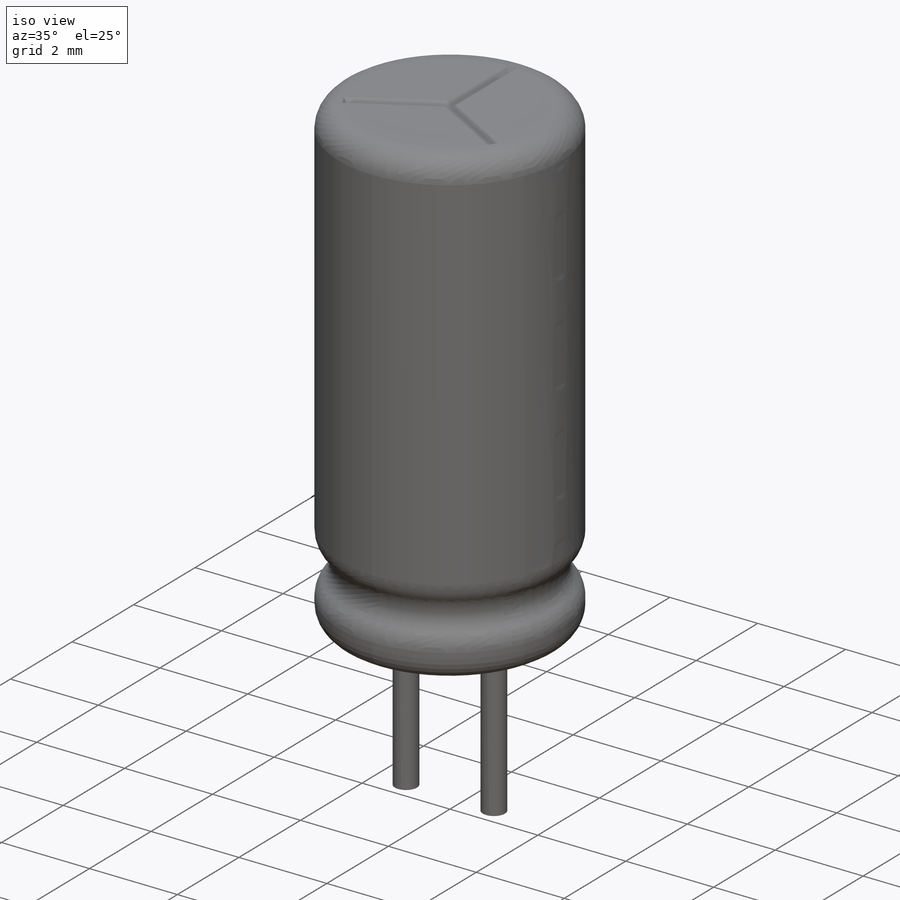
[diagram: iso view]
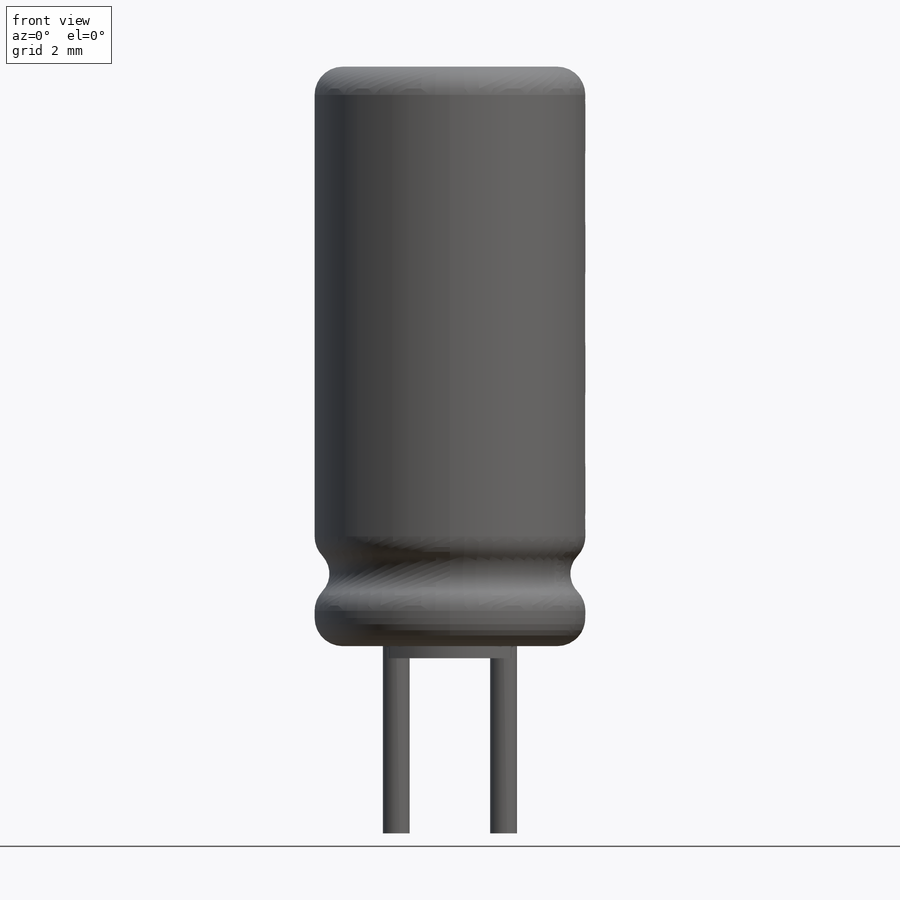
[diagram: front view]
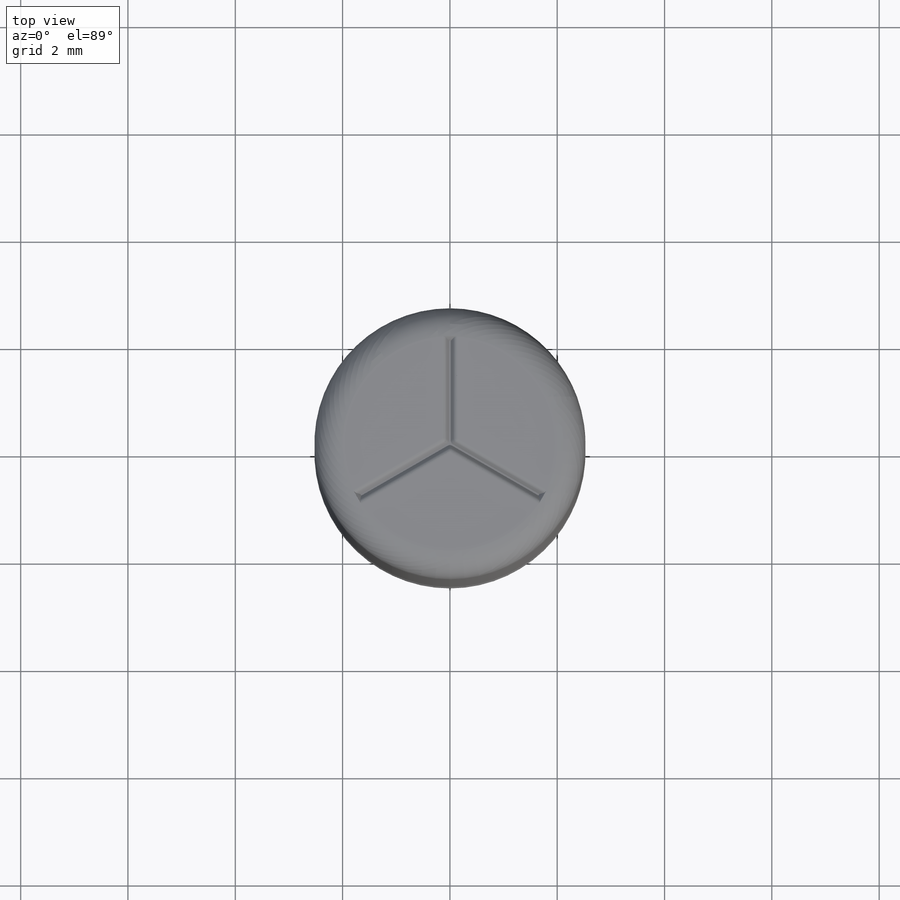
[diagram: top view]
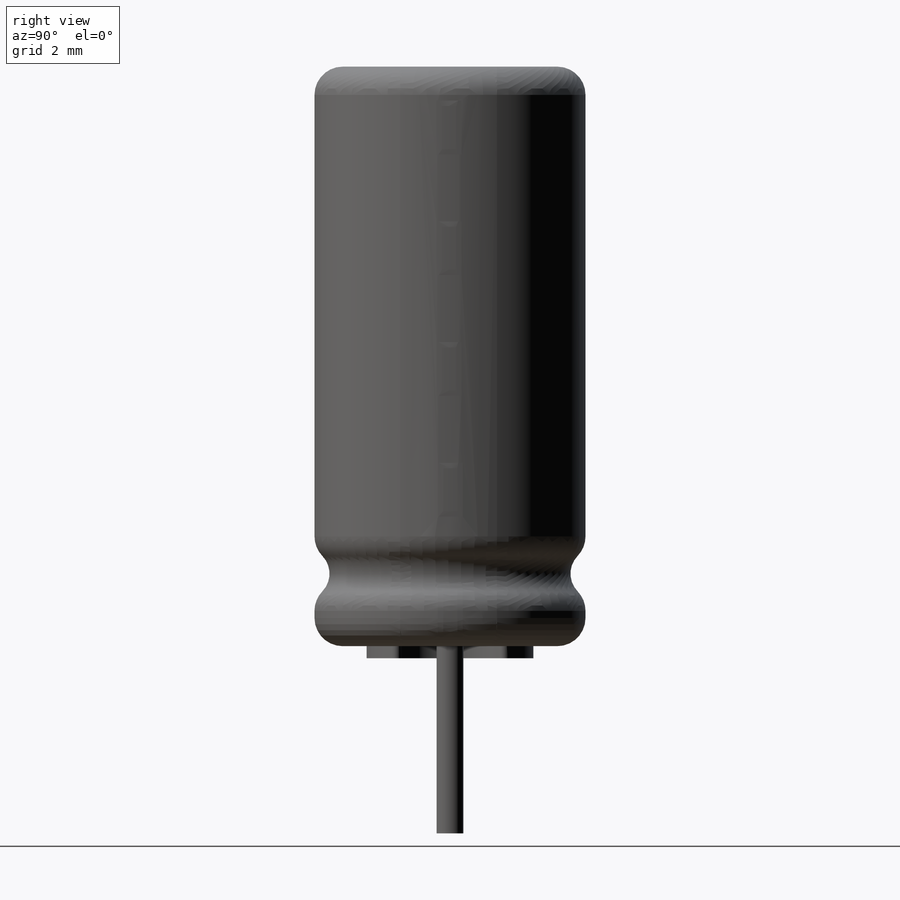
[diagram: right view]
SOLIDWORKS PART (.sldprt)
format: sldprt  version: not decoded by parser v0  size: 1,178,624 bytes
history: native  units: mm
features: sketch x17, pattern_linear x12, plane x3, material x1, revolve x1, mirror x1, extrude x1, sweep x1, cut_extrude x1, fillet x1 (+14 scaffold rows collapsed)
feature tree (53):
  scaffold x14  (default folders/planes/origin — collapsed)
  material  "Material <not specified>"
  plane  "Plan de face"
  plane  "Plan de dessus"
  plane  "Plan de droite"
  sketch  "Esquisse1"  dims[c1.D1=~0.346987mm c1.D2=~0.693974mm c1.D3=~0.346987mm c1.D4=0.5mm c1.D5=12.5mm c1.D6=5.0mm c1.D7=0.5mm c1.D8=5.0mm c1.D9=12.5mm c2.D5=2.5mm c2.D6=10.75mm c2.D8=0.22mm c2.D9=~0.632532mm]
  revolve  "Révolution1"  Angle=360deg
  sketch  "Esquisse3"  dims[c1.D1=30.0mm c2.D1=0.0254mm]
  mirror  "Symétrie1"
  sketch  "Esquisse10"  dims[D1=0.1mm]
  extrude  "Extrusion4"  Depth=0.25mm
  sketch  "Esquisse9"  dims[c1.D1=~0.208061mm c1.D2=0.5mm c2.D1=1.0mm]
  sketch  "Esquisse11"  dims[D1=1.0mm D2=5.0mm]
  sweep  "Balayage1"
  pattern_linear  "Répétition linéaire2"  Count1=2 Count2=1 Spacing1=2mm Spacing2=50mm
  sketch  "Sketch2"  dims[c1.D1=0.5mm c1.D2=11.0mm c1.D3=1.0mm c1.D4=1.0mm c1.D5=1.0mm c1.D6=0.1mm c1.D7=0.1mm c1.D8=0.1mm c1.D9=0.1mm c2.D4=0.1mm c2.D5=0.1mm c2.D10=0.1mm c2.D11=1.25mm c2.D12=1.25mm c2.D13=1.25mm c2.D1=0.1mm]
  pattern_linear  "Split Line2"  [2 undecoded]
  sketch  "Sketch4"  dims[c1.D1=0.5mm c1.D2=11.0mm c1.D3=1.0mm c1.D4=1.0mm c1.D5=1.0mm c1.D6=0.1mm c1.D7=0.1mm c1.D8=0.1mm c1.D9=0.1mm c2.D4=0.1mm c2.D5=0.1mm c2.D10=0.1mm c2.D11=1.25mm c2.D12=1.25mm c2.D13=1.25mm]
  sketch  "Sketch6"  dims[c1.D1=0.5mm c1.D2=11.0mm c1.D3=1.0mm c1.D4=1.0mm c1.D5=1.0mm c1.D6=0.1mm c1.D7=0.1mm c1.D8=0.1mm c1.D9=0.1mm c2.D4=0.1mm c2.D5=0.1mm c2.D10=0.1mm c2.D11=1.25mm c2.D12=1.25mm c2.D13=1.25mm]
  sketch  "Sketch7"  dims[c1.D1=0.5mm c1.D2=11.0mm c1.D3=1.0mm c1.D4=1.0mm c1.D5=1.0mm c1.D6=0.1mm c1.D7=0.1mm c1.D8=0.1mm c1.D9=0.1mm c2.D4=0.1mm c2.D5=0.1mm c2.D10=0.1mm c2.D11=1.25mm c2.D12=1.25mm c2.D13=1.25mm]
  sketch  "Sketch8"  dims[c1.D1=0.5mm c1.D2=11.0mm c1.D3=1.0mm c1.D4=1.0mm c1.D5=1.0mm c1.D6=0.1mm c1.D7=0.1mm c1.D8=0.1mm c1.D9=0.1mm c2.D4=0.1mm c2.D5=0.1mm c2.D10=0.1mm c2.D11=1.25mm c2.D12=1.25mm c2.D13=1.25mm]
  sketch  "Sketch9"  dims[c1.D1=0.5mm c1.D2=11.0mm c1.D3=1.0mm c1.D4=1.0mm c1.D5=1.0mm c1.D6=0.1mm c1.D7=0.1mm c1.D8=0.1mm c1.D9=0.1mm c2.D4=0.1mm c2.D5=0.1mm c2.D10=0.1mm c2.D11=1.25mm c2.D12=1.25mm c2.D13=1.25mm]
  pattern_linear  "Split Line11"  [2 undecoded]
  sketch  "Sketch10"  dims[c1.D1=0.5mm c1.D2=11.0mm c1.D3=1.0mm c1.D4=1.0mm c1.D5=1.0mm c1.D6=0.1mm c1.D7=0.1mm c1.D8=0.1mm c1.D9=0.1mm c2.D4=0.1mm c2.D5=0.1mm c2.D10=0.1mm c2.D11=1.25mm c2.D12=1.25mm c2.D13=1.25mm]
  pattern_linear  "Split Line12"  [2 undecoded]
  sketch  "Sketch11"  dims[c1.D1=0.5mm c1.D2=11.0mm c1.D3=1.0mm c1.D4=1.0mm c1.D5=1.0mm c1.D6=0.1mm c1.D7=0.1mm c1.D8=0.1mm c1.D9=0.1mm c2.D4=0.1mm c2.D5=0.1mm c2.D10=0.1mm c2.D11=1.25mm c2.D12=1.25mm c2.D13=1.25mm]
  pattern_linear  "Split Line16"  [2 undecoded]
  pattern_linear  "Split Line17"  [2 undecoded]
  pattern_linear  "Split Line18"  [2 undecoded]
  pattern_linear  "Split Line19"  [2 undecoded]
  pattern_linear  "Split Line21"  [2 undecoded]
  sketch  "Sketch12"  dims[c1.D1=0.5mm c1.D2=11.0mm c1.D3=1.0mm c1.D4=1.0mm c1.D5=1.0mm c1.D6=0.1mm c1.D7=0.1mm c1.D8=0.1mm c1.D9=0.1mm c2.D4=0.1mm c2.D5=0.1mm c2.D10=0.1mm c2.D11=1.25mm c2.D12=1.25mm c2.D13=1.25mm]
  pattern_linear  "Split Line22"  [2 undecoded]
  sketch  "Sketch13"  dims[c1.D1=0.5mm c1.D2=11.0mm c1.D3=1.0mm c1.D4=1.0mm c1.D5=1.0mm c1.D6=0.1mm c1.D7=0.1mm c1.D8=0.1mm c1.D9=0.1mm c2.D4=0.1mm c2.D5=0.1mm c2.D10=0.1mm c2.D11=1.25mm c2.D12=1.25mm c2.D13=1.25mm]
  pattern_linear  "Split Line23"  [2 undecoded]
  sketch  "Sketch14"  dims[c1.D1=0.5mm c1.D2=11.0mm c1.D3=1.0mm c1.D4=1.0mm c1.D5=1.0mm c1.D6=0.1mm c1.D7=0.1mm c1.D8=0.1mm c1.D9=0.1mm c2.D4=0.1mm c2.D5=0.1mm c2.D10=0.1mm c2.D11=1.25mm c2.D12=1.25mm c2.D13=1.25mm]
  pattern_linear  "Split Line24"  [2 undecoded]
  sketch  "Sketch16"  dims[c1.D1=3.5mm c2.D1=120.0deg c2.D2=~2.419809mm c3.D2=120.0deg c3.D3=0.1mm c3.D4=0.1mm]
  cut_extrude  "Extrude1"  Depth=0.1mm
  fillet  "Fillet1"  Radius=0.1mm
decode coverage: 22 of 35 modeling features carry decoded parameters
note: ~ marks probable driven/reference dimensions
note: 22 parameter values undecoded
note: suppression state not decoded; provenance and decode notes live in map.json
